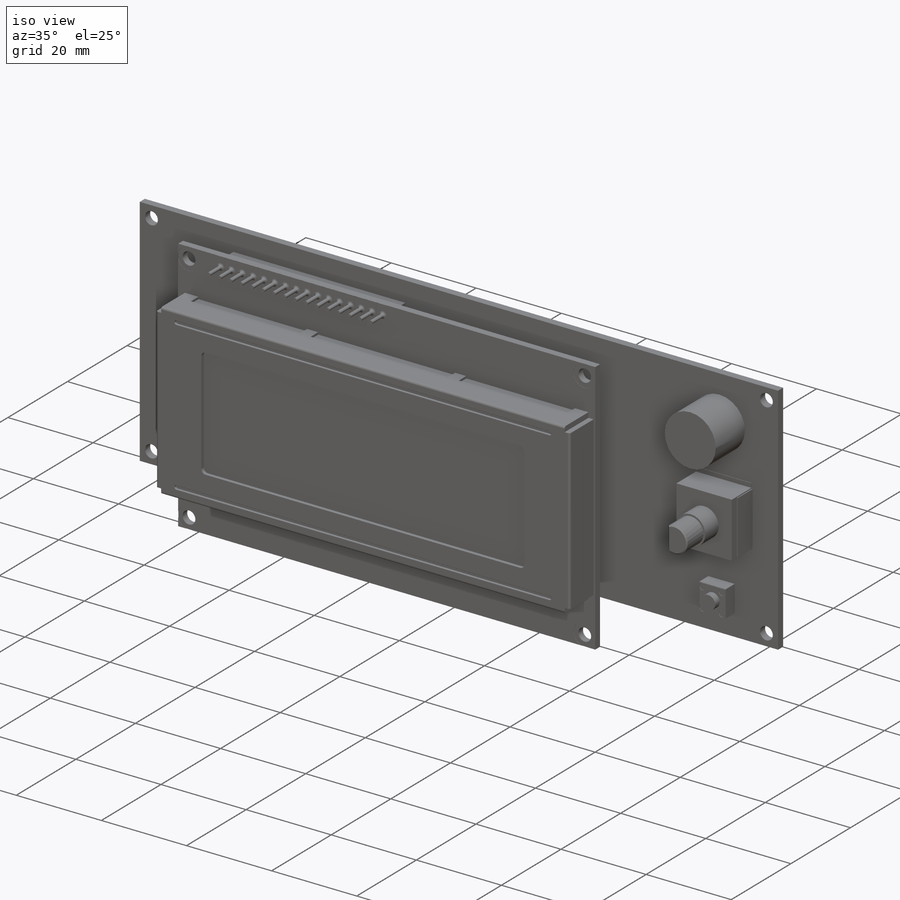
[diagram: iso view]
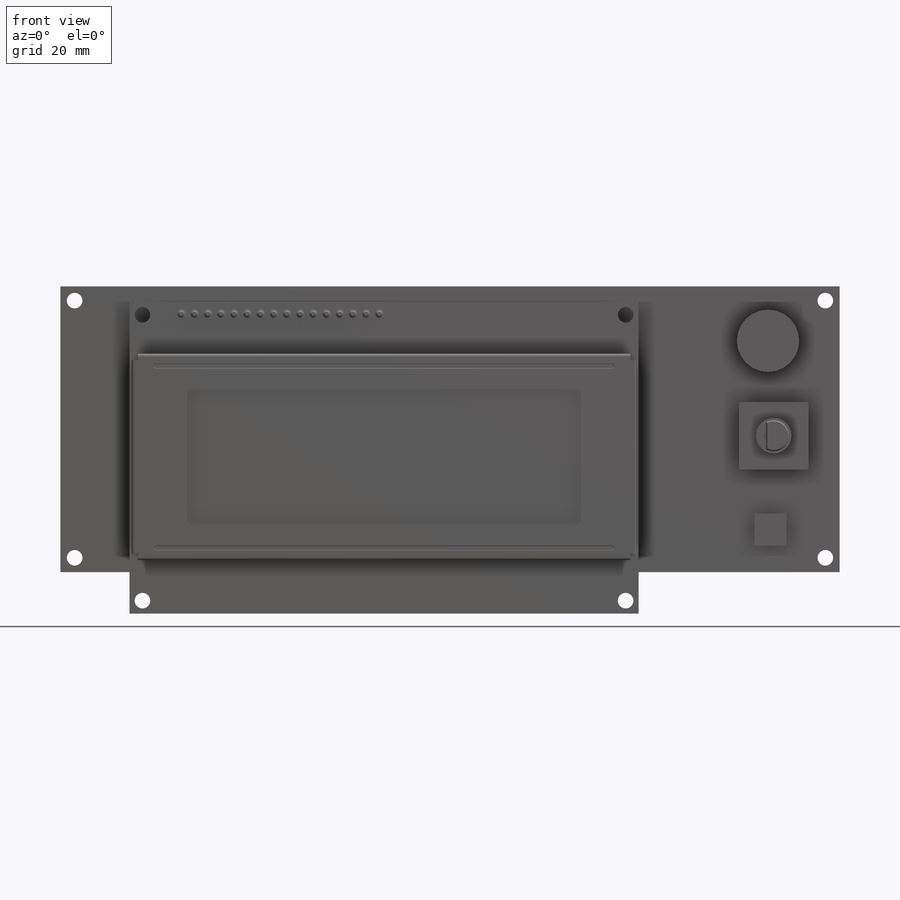
[diagram: front view]
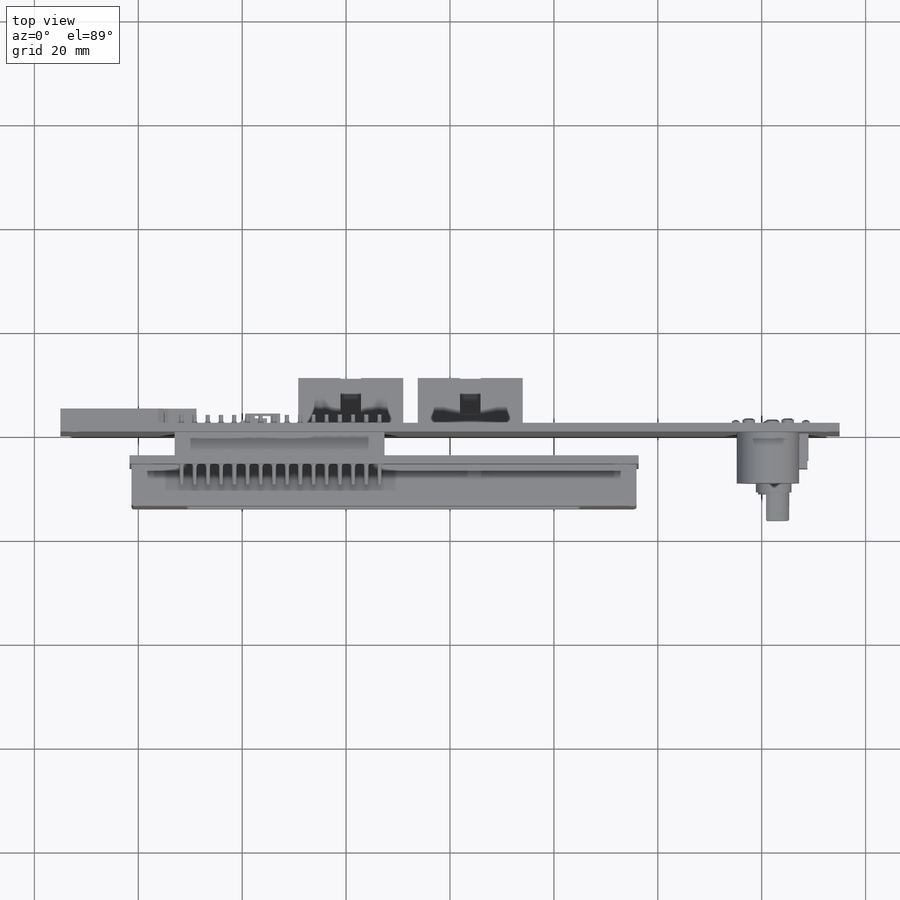
[diagram: top view]
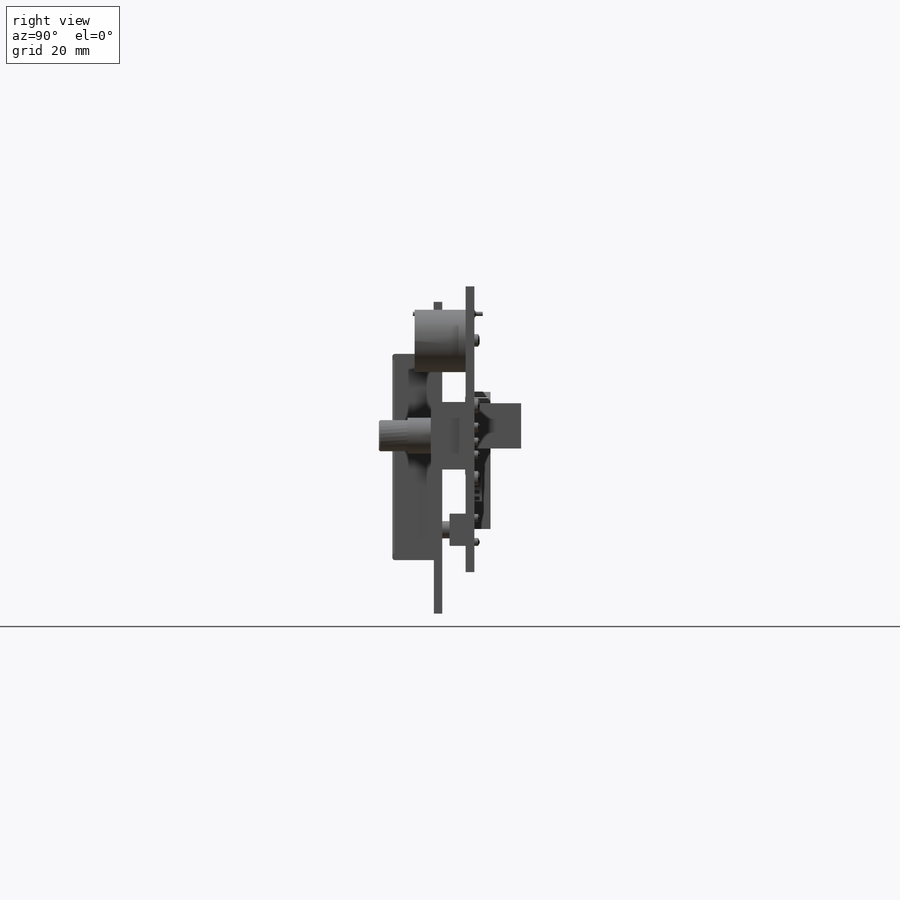
[diagram: right view]
SOLIDWORKS PART (.sldprt)
format: sldprt  version: not decoded by parser v0  size: 1,945,600 bytes
history: native  units: mm
features: sketch x35, extrude x26, cut_extrude x9, fillet x6, chamfer x6, plane x5, mirror x2, pattern_linear x2, material x1 (+13 scaffold rows collapsed)
feature tree (105):
  scaffold x13  (default folders/planes/origin — collapsed)
  material  "Material <not specified>"
  sketch  "Sketch1"  dims[D1=150.0mm D2=55.0mm]
  extrude  "Boss-Extrude1"  Depth=1.7mm
  sketch  "Sketch2"  dims[D3=3.0mm D1=49.5mm D2=144.5mm]
  cut_extrude  "Cut-Extrude1"  [1 undecoded]
  plane  "Plane1"  Offset=6.1mm
  sketch  "Sketch4"  dims[D1=60.0mm D2=98.0mm D3=13.3mm D4=3.0mm]
  extrude  "Boss-Extrude2"  Depth=1.6mm
  sketch  "Sketch3"  dims[D1=22.0mm D2=4.75mm D3=5.5mm D4=40.4mm]
  extrude  "Boss-Extrude3"  [1 undecoded]
  sketch  "Sketch5"  dims[D3=3.0mm D1=55.0mm D2=93.0mm]
  cut_extrude  "Cut-Extrude2"  [1 undecoded]
  plane  "Plane2"  Offset=15.8mm
  sketch  "Sketch6"  dims[D1=97.2mm D2=39.7mm D3=10.0mm D4=1.2mm]
  extrude  "Boss-Extrude4"  [1 undecoded]
  sketch  "Sketch7"  dims[D1=25.9mm D2=75.9mm D3=~7.058675mm]
  cut_extrude  "Cut-Extrude3"  Depth=0.8mm
  fillet  "Fillet1"  Radius=1mm
  fillet  "Fillet2"  Radius=0.5mm
  sketch  "Sketch8"  dims[D1=0.8mm D2=88.5mm D3=35.0mm]
  cut_extrude  "Cut-Extrude4"  Depth=0.5mm
  fillet  "Fillet3"  Radius=0.4mm
  fillet  "Fillet4"  Radius=0.1mm
  sketch  "Sketch9"  dims[D1=2.5mm D2=32.2mm D3=25.55mm D4=88.5mm]
  cut_extrude  "Cut-Extrude5"  Depth=0.5mm
  plane  "Plane3"
  mirror  "Mirror1"
  sketch  "Sketch10"  dims[D1=2.0mm D2=10.0mm D3=2.3mm]
  extrude  "Boss-Extrude5"  Depth=0.05mm
  sketch  "Sketch11"  dims[D1=0.8mm]
  extrude  "Boss-Extrude6"  Depth=4mm
  fillet  "Fillet5"  Radius=0.5mm
  pattern_linear  "LPattern1"  Count1=16 Count2=1 Spacing1=2.54mm Spacing2=10mm
  sketch  "Sketch12"  dims[D1=5.2mm]
  cut_extrude  "Cut-Extrude7"  Depth=0.05mm
  sketch  "Sketch13"  dims[D1=12.0mm D2=10.5mm D3=13.8mm]
  extrude  "Boss-Extrude8"  Depth=9.8mm
  sketch  "Sketch14"  dims[D1=13.4mm D2=6.0mm D3=22.5mm D4=12.5mm]
  extrude  "Boss-Extrude9"  Depth=5mm
  plane  "Plane4"
  sketch  "Sketch15"  dims[D1=13.0mm D2=8.4mm D3=0.1mm D4=15.0mm]
  extrude  "Boss-Extrude10"  Depth=13mm
  sketch  "Sketch41"  dims[D1=6.85mm]
  extrude  "Boss-Extrude30"  Depth=4.5mm
  sketch  "Sketch42"  dims[D1=6.0mm]
  extrude  "Boss-Extrude31"  Depth=5.5mm
  sketch  "Sketch43"  dims[D2=1.47mm D1=0.0mm]
  cut_extrude  "Cut-Extrude11"  Depth=5.1mm
  chamfer  "Chamfer7"  Distance=0.25mm Angle=45deg
  sketch  "Sketch19"  dims[D1=6.2mm D2=11.25mm D3=16.4mm]
  extrude  "Boss-Extrude14"  Depth=3mm
  sketch  "Sketch21"  dims[D1=3.3mm]
  extrude  "Boss-Extrude15"  Depth=1.5mm
  sketch  "Sketch22"  dims[c1.D1=3.3mm c1.D2=1.5mm c2.D1=0.1mm c2.D3=4.5mm c2.D4=0.05mm]
  extrude  "Boss-Extrude16"  Depth=0.1mm
  sketch  "Sketch23"  dims[D1=20.2mm D2=8.7mm D3=7.0mm D4=4.5mm D5=22.5mm D6=61.0mm]
  extrude  "Boss-Extrude17"  Depth=9mm
  sketch  "Sketch40"  dims[D1=1.0mm D2=1.0mm D3=4.0mm]
  cut_extrude  "Cut-Extrude10"  Depth=2mm
  pattern_linear  "LPattern2"  Count1=2 Count2=1 Spacing1=23mm Spacing2=10mm
  sketch  "Sketch26"
  extrude  "Boss-Extrude19"  Depth=1.6mm
  fillet  "Fillet6"  Radius=0.5mm
  sketch  "Sketch27"  dims[c1.D1=26.4mm c1.D2=26.2mm c1.D3=5.4mm c1.D4=~4.543323mm c2.D4=45.0deg c2.D5=24.4mm c2.D6=8.3mm]
  extrude  "Boss-Extrude20"  Depth=3.1mm
  sketch  "Sketch28"  dims[D1=2.6mm D2=24.2mm D3=0.5mm]
  cut_extrude  "Cut-Extrude9"  Depth=20mm
  sketch  "Sketch29"  dims[c1.D5=1.5mm c1.D6=2.8mm c1.D9=2.4mm c1.D19=2.8mm c1.D20=2.8mm c1.D1=6.5mm c1.D2=4.6mm c1.D3=5.0mm c1.D4=7.5mm c1.D7=10.4mm c1.D8=10.0mm c1.D10=20.0mm c1.D11=27.4mm c1.D12=23.0mm c1.D13=13.0mm c1.D14=6.5mm c1.D15=27.0mm c1.D16=5.5mm c1.D17=5.8mm c1.D18=10.5mm c2.D19=13.4mm c2.D20=18.0mm]
  extrude  "Boss-Extrude21"  Depth=1mm
  chamfer  "Chamfer2"  Distance=0.3mm Angle=60deg
  sketch  "Sketch30"  dims[D1=10.0mm D2=4.3mm]
  extrude  "Boss-Extrude22"  Depth=1.4mm
  sketch  "Sketch31"  dims[c1.D1=9.5mm c1.D2=0.7mm c2.D1=9.5mm c2.D3=7.8mm]
  extrude  "Boss-Extrude23"  Depth=1mm
  chamfer  "Chamfer3"  Distance=1mm Angle=50deg
  plane  "Plane5"
  mirror  "Mirror2"
  sketch  "Sketch34"  dims[D1=1.4mm D2=3.0mm D3=13.8mm D4=70.0mm]
  extrude  "Boss-Extrude24"  Depth=6.6mm
  sketch  "Sketch35"  dims[D1=6.7mm D2=3.4mm D3=12.6mm D4=35.6mm]
  extrude  "Boss-Extrude25"  Depth=2mm
  sketch  "Sketch36"  dims[D1=1.2mm D2=0.8mm D3=5.5mm D4=2.0mm D5=3.0mm]
  extrude  "Boss-Extrude26"  Depth=1.5mm
  chamfer  "Chamfer4"  Distance=1mm Angle=50deg
  sketch  "Sketch37"  dims[D1=1.6mm D2=13.0mm D3=30.5mm D4=30.0mm D5=32.5mm D6=58.5mm D7=70.0mm]
  extrude  "Boss-Extrude27"  Depth=1mm
  chamfer  "Chamfer5"  Distance=0.5mm Angle=50deg
  sketch  "Sketch38"  dims[D1=4.0mm D2=3.2mm D3=12.7mm D4=22.5mm]
  extrude  "Boss-Extrude28"  Depth=1mm
  sketch  "Sketch39"  dims[D1=3.5mm]
  extrude  "Boss-Extrude29"  Depth=0.7mm
  chamfer  "Chamfer6"  Distance=0.5mm Angle=50deg
decode coverage: 79 of 86 modeling features carry decoded parameters
note: ~ marks probable driven/reference dimensions
note: 4 parameter values undecoded
summary: no parameter record found for 4 features
note: suppression state not decoded; provenance and decode notes live in map.json
